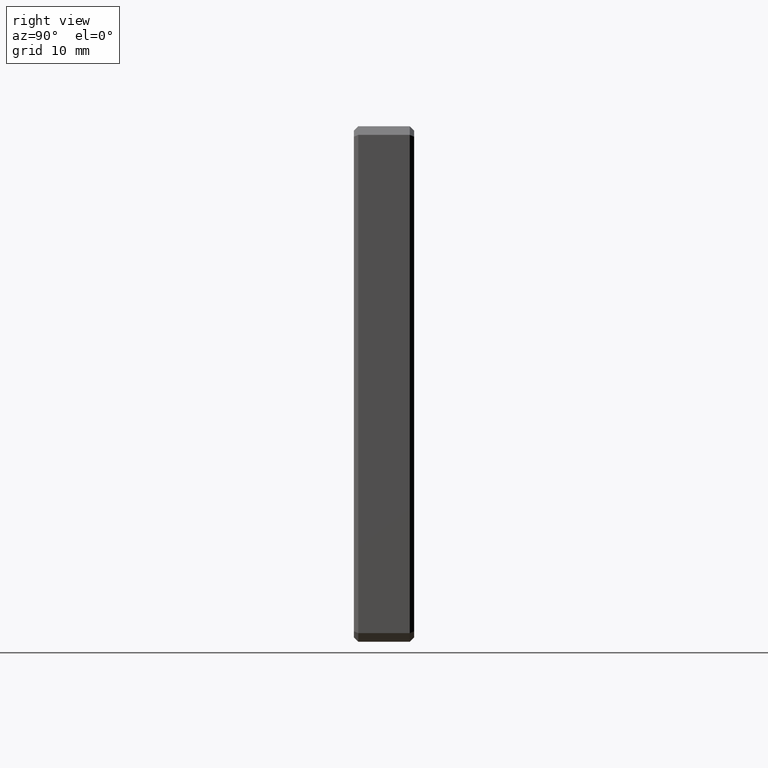
[diagram: clean part render]
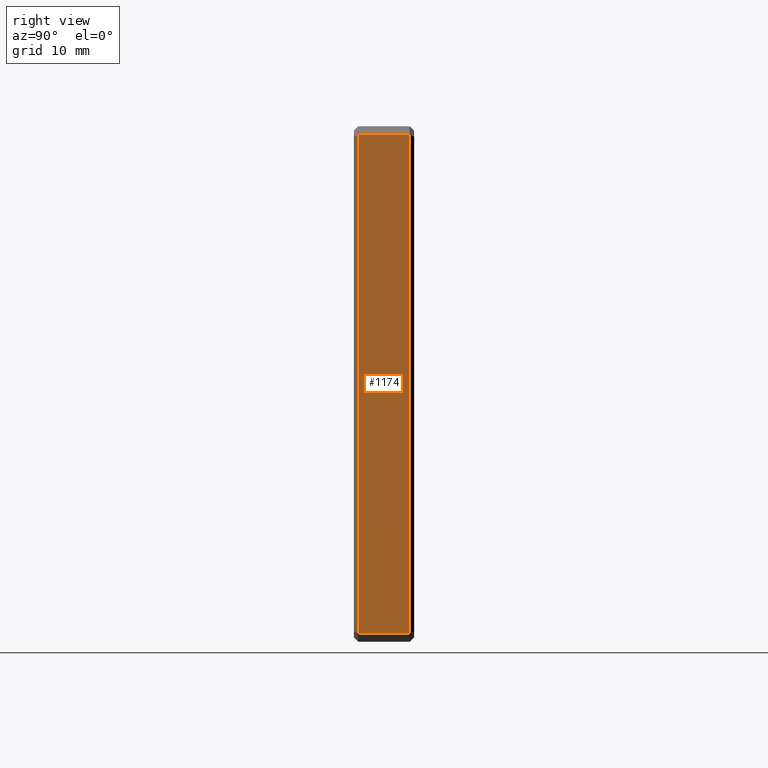
[diagram: same view with one face highlighted and labeled with its STEP entity id]
A machine part, right view. The second image highlights one B-rep face of the part: STEP entity #1174.
In plain terms, the highlighted planar face has unit normal (-1, 0, 0).
Its self-contained STEP definition (entity closure, byte-faithful):
#60 = ORIENTED_EDGE ( 'NONE', *, *, #1091, .T. ) ;
#97 = VECTOR ( 'NONE', #574, 1000.000000000000000 ) ;
#114 = LINE ( 'NONE', #579, #97 ) ;
#172 = CARTESIAN_POINT ( 'NONE',  ( 30.00000000000000000, 0.4999999999999935052, -28.99999999999999645 ) ) ;
#242 = VECTOR ( 'NONE', #1047, 1000.000000000000000 ) ;
#256 = LINE ( 'NONE', #514, #242 ) ;
#271 = DIRECTION ( 'NONE',  ( 0.000000000000000000, 0.000000000000000000, -1.000000000000000000 ) ) ;
#282 = ORIENTED_EDGE ( 'NONE', *, *, #1131, .T. ) ;
#321 = EDGE_CURVE ( 'NONE', #772, #437, #256, .T. ) ;
#342 = CARTESIAN_POINT ( 'NONE',  ( 30.00000000000000000, 0.4999999999999935052, -30.00000000000000711 ) ) ;
#416 = EDGE_LOOP ( 'NONE', ( #282, #1100, #1190, #60 ) ) ;
#437 = VERTEX_POINT ( 'NONE', #1148 ) ;
#505 = DIRECTION ( 'NONE',  ( 0.000000000000000000, 0.000000000000000000, 1.000000000000000000 ) ) ;
#514 = CARTESIAN_POINT ( 'NONE',  ( 30.00000000000000000, 7.000000000000000000, -28.99999999999999645 ) ) ;
#574 = DIRECTION ( 'NONE',  ( 0.000000000000000000, -0.000000000000000000, 1.000000000000000000 ) ) ;
#579 = CARTESIAN_POINT ( 'NONE',  ( 30.00000000000000000, 6.500000000000000000, 28.99999999999998934 ) ) ;
#612 = LINE ( 'NONE', #675, #972 ) ;
#636 = VERTEX_POINT ( 'NONE', #950 ) ;
#644 = VERTEX_POINT ( 'NONE', #1136 ) ;
#675 = CARTESIAN_POINT ( 'NONE',  ( 30.00000000000000000, 7.000000000000000000, 28.99999999999998934 ) ) ;
#700 = CARTESIAN_POINT ( 'NONE',  ( 30.00000000000000000, 7.000000000000000000, -30.00000000000000711 ) ) ;
#772 = VERTEX_POINT ( 'NONE', #172 ) ;
#782 = FACE_OUTER_BOUND ( 'NONE', #416, .T. ) ;
#832 = VECTOR ( 'NONE', #271, 1000.000000000000000 ) ;
#950 = CARTESIAN_POINT ( 'NONE',  ( 30.00000000000000000, 0.4999999999999935052, 28.99999999999998934 ) ) ;
#972 = VECTOR ( 'NONE', #1164, 1000.000000000000000 ) ;
#991 = EDGE_CURVE ( 'NONE', #636, #772, #1230, .T. ) ;
#995 = PLANE ( 'NONE',  #1061 ) ;
#1002 = DIRECTION ( 'NONE',  ( -1.000000000000000000, 0.000000000000000000, 0.000000000000000000 ) ) ;
#1047 = DIRECTION ( 'NONE',  ( 0.000000000000000000, 1.000000000000000000, 0.000000000000000000 ) ) ;
#1061 = AXIS2_PLACEMENT_3D ( 'NONE', #700, #1002, #505 ) ;
#1091 = EDGE_CURVE ( 'NONE', #437, #644, #114, .T. ) ;
#1100 = ORIENTED_EDGE ( 'NONE', *, *, #991, .T. ) ;
#1131 = EDGE_CURVE ( 'NONE', #644, #636, #612, .T. ) ;
#1136 = CARTESIAN_POINT ( 'NONE',  ( 30.00000000000000000, 6.500000000000000000, 28.99999999999998934 ) ) ;
#1148 = CARTESIAN_POINT ( 'NONE',  ( 30.00000000000000000, 6.500000000000000000, -28.99999999999999645 ) ) ;
#1164 = DIRECTION ( 'NONE',  ( 0.000000000000000000, -1.000000000000000000, 0.000000000000000000 ) ) ;
#1174 = ADVANCED_FACE ( 'NONE', ( #782 ), #995, .F. ) ;
#1190 = ORIENTED_EDGE ( 'NONE', *, *, #321, .T. ) ;
#1230 = LINE ( 'NONE', #342, #832 ) ;